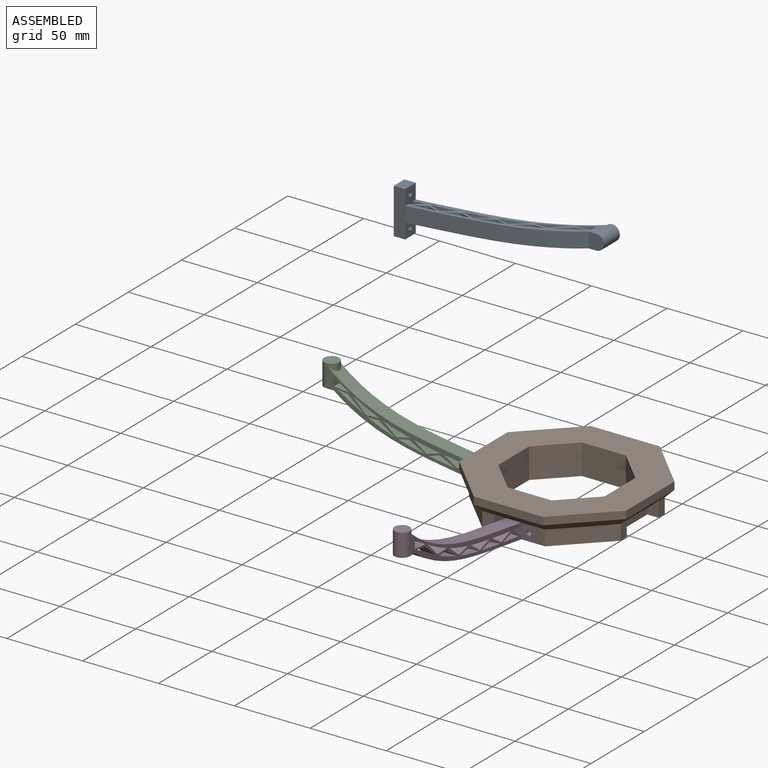
[diagram: assembled view]
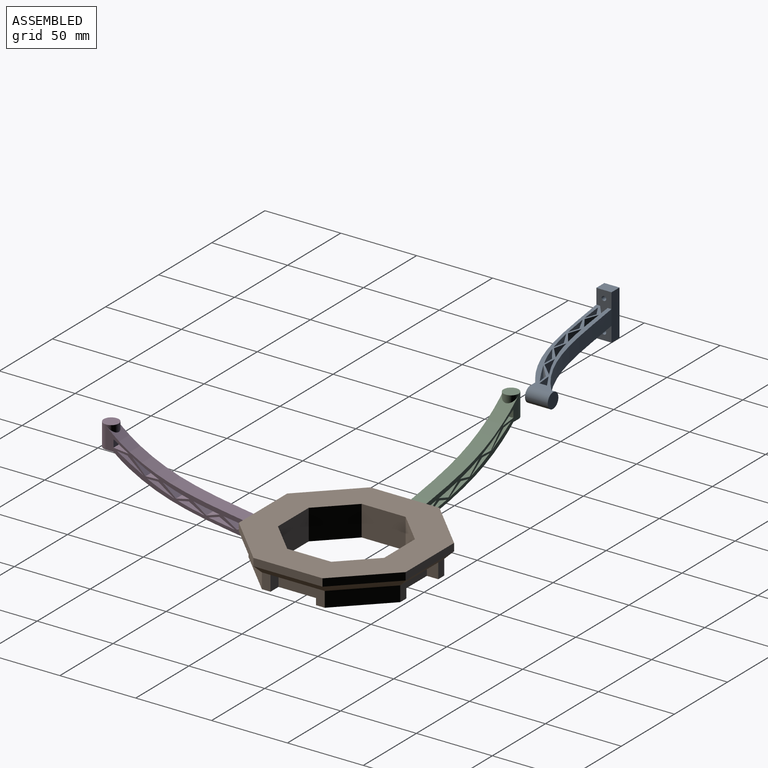
[diagram: assembled view, second angle]
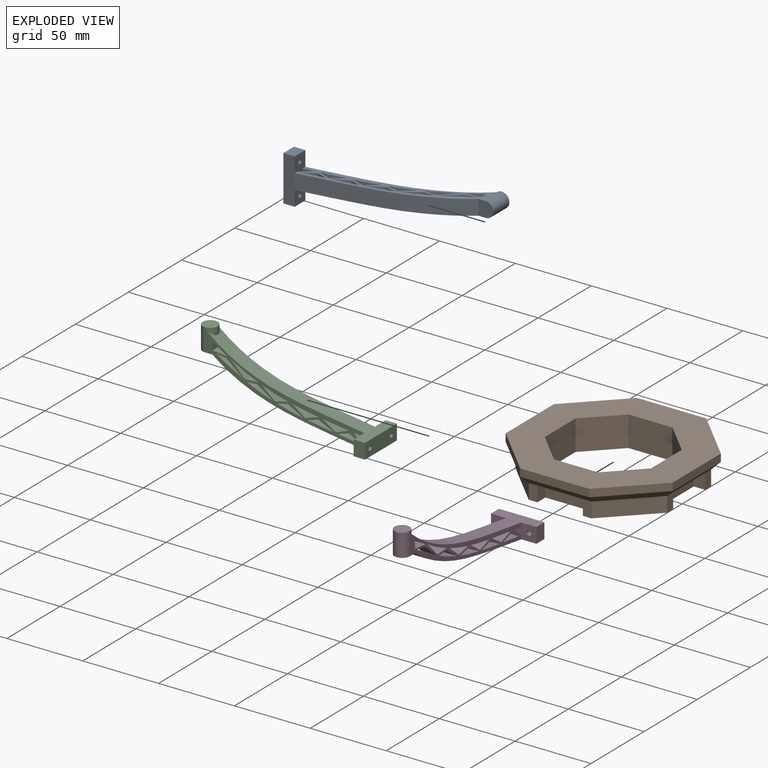
[diagram: exploded view]
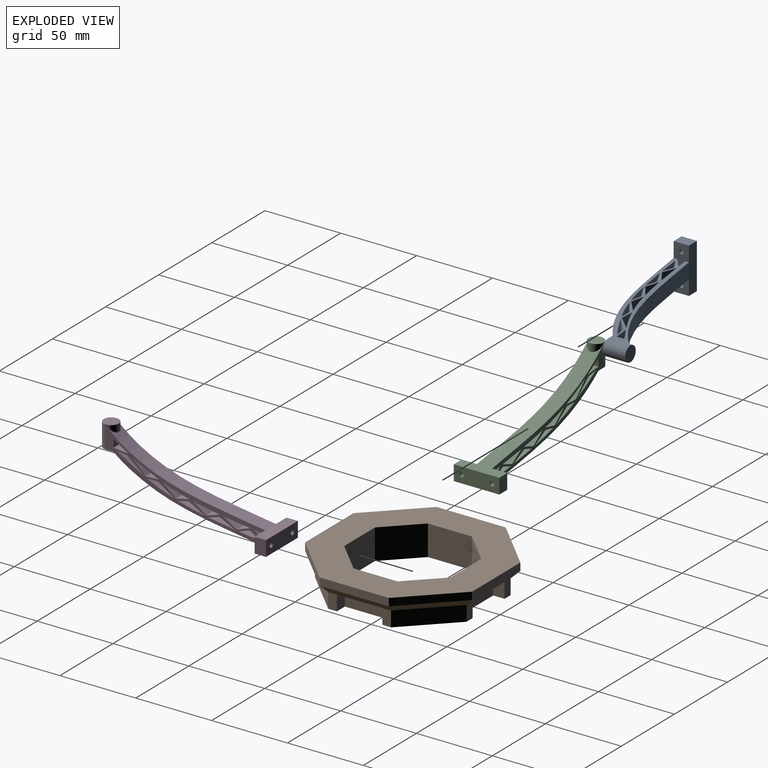
[diagram: exploded view, second angle]
ASSEMBLY  parts=4 mates=2
PART A: 47 faces, bbox 117.5x45x30 mm
  f0: plane 10x7.08mm, normal (0.13,-0.99,0), area 71.5mm2, adj f1,f39,f40,f41
  f1: extruded ~17.86x10.11mm, area 205.3mm2, adj f0,f39,f40,f41
  f2: extruded ~17.76x10mm, area 191.2mm2, adj f3,f28,f40,f41
  f3: plane 10.55x10mm, normal (0.56,-0.83,0), area 127.7mm2, adj f2,f28,f40,f41
  f4: plane 10x7.34mm, normal (-0.33,-0.94,0), area 77.7mm2, adj f5,f29,f40,f41
  f5: extruded ~15.04x10mm, area 151.5mm2, adj f4,f29,f40,f41
  f6: extruded ~17.34x10mm, area 175.5mm2, adj f7,f30,f40,f41
  f7: plane 10.23x10mm, normal (0.44,-0.9,0), area 113.7mm2, adj f6,f30,f40,f41
  f8: extruded ~17.6x10mm, area 180.8mm2, adj f9,f31,f40,f41
  f9: plane 10.34x10mm, normal (0.48,-0.88,0), area 117.8mm2, adj f8,f31,f40,f41
  f10: extruded ~17.83x10mm, area 198.8mm2, adj f11,f32,f40,f41
  f11: plane 10x9.15mm, normal (-0.72,0.7,0), area 127.9mm2, adj f10,f32,f40,f41
  f12: extruded ~17.68x10mm, area 184.8mm2, adj f13,f33,f40,f41
  f13: plane 10x8.88mm, normal (-0.64,0.77,0), area 115.4mm2, adj f12,f33,f40,f41
  f14: extruded ~17.56x10mm, area 178.7mm2, adj f15,f34,f40,f41
  f15: plane 10x8.69mm, normal (-0.58,0.82,0), area 106.6mm2, adj f14,f34,f40,f41
  f16: extruded ~17.53x10mm, area 176.9mm2, adj f17,f35,f40,f41
  f17: plane 10x8.77mm, normal (-0.54,0.84,0), area 104.1mm2, adj f16,f35,f40,f41
  f18: extruded ~10x7.52mm, area 75.7mm2, adj f19,f36,f40,f41
  f19: plane 10x7.52mm, normal (-0.62,0.79,0), area 95.6mm2, adj f18,f36,f40,f41
  f20: extruded ~100x30mm, area 1057.5mm2, adj f21,f37,f40,f41
  f21: plane 10x10mm, normal (0,-1,0), area 89.3mm2, adj f20,f40,f41,f42
  f22: plane 10x10mm, normal (0,1,0), area 78.5mm2, adj f42
  f23: extruded ~105x34.08mm, area 1071.3mm2, adj f24,f40,f41,f42
  f24: plane 30x7.5mm, normal (0,1,0), area 225mm2, adj f23,f25,f36,f43,f45
  f25: plane 30x10mm, normal (-1,0,0), area 285.9mm2, adj f24,f37,f43,f44,f45,f46
  f26: plane 10x5mm, normal (-1,0,0), area 50mm2, adj f27,f38,f40,f41
  f27: plane 10x10mm, normal (-0.1,1,0), area 100.5mm2, adj f26,f38,f40,f41
  f28: plane 10x7.21mm, normal (-0.02,-1,0), area 72.1mm2, adj f2,f3,f40,f41
  f29: plane 10x7.7mm, normal (0.5,-0.87,0), area 88.8mm2, adj f4,f5,f40,f41
  f30: plane 10x7.11mm, normal (-0.31,-0.95,0), area 74.7mm2, adj f6,f7,f40,f41
  f31: plane 10x7.27mm, normal (-0.21,-0.98,0), area 74.3mm2, adj f8,f9,f40,f41
  f32: plane 10x8.89mm, normal (0.04,1,0), area 89mm2, adj f10,f11,f40,f41
  f33: plane 10x8.8mm, normal (0.22,0.97,0), area 90.3mm2, adj f12,f13,f40,f41
  f34: plane 10x8.87mm, normal (0.31,0.95,0), area 93.4mm2, adj f14,f15,f40,f41
  f35: plane 10x8.76mm, normal (0.35,0.94,0), area 93.4mm2, adj f16,f17,f40,f41
  f36: plane 30x10mm, normal (1,0,0), area 235.9mm2, adj f18,f19,f24,f37,f40,f41,f43,f44
  f37: plane 30x7.5mm, normal (0,-1,0), area 225mm2, adj f20,f25,f36,f43,f45
  f38: extruded ~10x10mm, area 116.4mm2, adj f26,f27,f40,f41
  f39: plane 10.78x10mm, normal (0.65,-0.76,0), area 141.4mm2, adj f0,f1,f40,f41
  f40: plane 105.76x44.84mm, normal (0,0,1), area 715.1mm2, adj f0,f1,f2,f3,f4,f5,f6,f7
  f41: plane 105.76x44.84mm, normal (0,0,-1), area 715.1mm2, adj f0,f1,f2,f3,f4,f5,f6,f7
  f42: cylinder r=5mm len=15mm, axis (0,-1,0), area 290.9mm2, adj f21,f22,f23,f40,f41
  f43: plane 10x7.5mm, normal (0,0,1), area 75mm2, adj f24,f25,f36,f37
  f44: cylinder r=1.5mm len=7.5mm, axis (1,0,0), area 70.7mm2, adj f25,f36
  f45: plane 10x7.5mm, normal (0,0,-1), area 75mm2, adj f24,f25,f36,f37
  f46: cylinder r=1.5mm len=7.5mm, axis (1,0,0), area 70.7mm2, adj f25,f36
PART B: 54 faces, bbox 110x110x20 mm
  f0: plane 30x7.5mm, normal (0,0,-1), area 225mm2, adj f20,f21,f22,f52
  f1: plane 30x7.5mm, normal (0,0,-1), area 225mm2, adj f3,f4,f34,f48
  f2: plane 30x7.5mm, normal (0,0,-1), area 225mm2, adj f8,f9,f10,f47
  f3: plane 30x10mm, normal (1,0,0), area 300mm2, adj f1,f4,f34,f35
  f4: plane 10x7.5mm, normal (0,-1,0), area 75mm2, adj f1,f3,f5,f35
  f5: plane 10x5.71mm, normal (1,0,0), area 57.1mm2, adj f4,f6,f35,f48
  f6: plane 29.29x29.29mm, normal (0.71,0.71,0), area 414.2mm2, adj f5,f7,f35,f46
  f7: plane 10x5.71mm, normal (0,1,0), area 57.1mm2, adj f6,f8,f35,f47
  f8: plane 10x7.5mm, normal (-1,0,0), area 75mm2, adj f2,f7,f9,f35
  f9: plane 30x10mm, normal (0,1,0), area 300mm2, adj f2,f8,f10,f35
  f10: plane 10x7.5mm, normal (1,0,0), area 75mm2, adj f2,f9,f11,f35
  f11: plane 10x5.71mm, normal (0,1,0), area 57.1mm2, adj f10,f12,f35,f47
  f12: plane 29.29x29.29mm, normal (-0.71,0.71,0), area 414.2mm2, adj f11,f13,f35,f49
  f13: plane 10x5.71mm, normal (-1,0,0), area 57.1mm2, adj f12,f14,f35,f51
  f14: plane 10x7.5mm, normal (0,-1,0), area 75mm2, adj f13,f15,f35,f45
  f15: plane 30x10mm, normal (-1,0,0), area 300mm2, adj f14,f16,f35,f45
  f16: plane 10x7.5mm, normal (0,1,0), area 75mm2, adj f15,f17,f35,f45
  f17: plane 10x5.71mm, normal (-1,0,0), area 57.1mm2, adj f16,f18,f35,f51
  f18: plane 29.29x29.29mm, normal (-0.71,-0.71,0), area 414.2mm2, adj f17,f19,f35,f53
  f19: plane 10x5.71mm, normal (0,-1,0), area 57.1mm2, adj f18,f20,f35,f52
  f20: plane 10x7.5mm, normal (1,0,0), area 75mm2, adj f0,f19,f21,f35
  f21: plane 30x10mm, normal (0,-1,0), area 300mm2, adj f0,f20,f22,f35
  f22: plane 10x7.5mm, normal (-1,0,0), area 75mm2, adj f0,f21,f23,f35
  f23: plane 10x5.71mm, normal (0,-1,0), area 57.1mm2, adj f22,f24,f35,f52
  f24: plane 29.29x29.29mm, normal (0.71,-0.71,0), area 414.2mm2, adj f23,f25,f35,f50
  f25: plane 10x5.71mm, normal (1,0,0), area 57.1mm2, adj f24,f34,f35,f48
  f26: plane 29x20mm, normal (0,-1,0), area 579.9mm2, adj f27,f33,f35,f44
  f27: plane 20.5x20.5mm, normal (-0.71,-0.71,0), area 579.9mm2, adj f26,f28,f35,f44
  f28: plane 29x20mm, normal (-1,0,0), area 579.9mm2, adj f27,f29,f35,f44
  f29: plane 20.5x20.5mm, normal (-0.71,0.71,0), area 579.9mm2, adj f28,f30,f35,f44
  f30: plane 29x20mm, normal (0,1,0), area 579.9mm2, adj f29,f31,f35,f44
  f31: plane 20.5x20.5mm, normal (0.71,0.71,0), area 579.9mm2, adj f30,f32,f35,f44
  f32: plane 29x20mm, normal (1,0,0), area 579.9mm2, adj f31,f33,f35,f44
  f33: plane 20.5x20.5mm, normal (0.71,-0.71,0), area 579.9mm2, adj f26,f32,f35,f44
  f34: plane 10x7.5mm, normal (0,1,0), area 75mm2, adj f1,f3,f25,f35
  f35: plane 100x100mm, normal (0,0,-1), area 3325mm2, adj f3,f4,f5,f6,f7,f8,f9,f10
  f36: plane 32.22x32.22mm, normal (0.71,0.71,0), area 227.8mm2, adj f37,f43,f44,f46
  f37: plane 45.56x5mm, normal (0,1,0), area 227.8mm2, adj f36,f38,f44,f47
  f38: plane 32.22x32.22mm, normal (-0.71,0.71,0), area 227.8mm2, adj f37,f39,f44,f49
  f39: plane 45.56x5mm, normal (-1,0,0), area 227.8mm2, adj f38,f40,f44,f51
  f40: plane 32.22x32.22mm, normal (-0.71,-0.71,0), area 227.8mm2, adj f39,f41,f44,f53
  f41: plane 45.56x5mm, normal (0,-1,0), area 227.8mm2, adj f40,f42,f44,f52
  f42: plane 32.22x32.22mm, normal (0.71,-0.71,0), area 227.8mm2, adj f41,f43,f44,f50
  f43: plane 45.56x5mm, normal (1,0,0), area 227.8mm2, adj f36,f42,f44,f48
  f44: plane 110x110mm, normal (0,0,1), area 5964.7mm2, adj f26,f27,f28,f29,f30,f31,f32,f33
  f45: plane 30x7.5mm, normal (0,0,-1), area 225mm2, adj f14,f15,f16,f51
  f46: plane 34.29x34.29mm, normal (0.5,0.5,-0.71), area 307.5mm2, adj f6,f36,f47,f48
  f47: plane 45.56x5mm, normal (0,0.71,-0.71), area 307.5mm2, adj f2,f7,f11,f37,f46,f49
  f48: plane 45.56x5mm, normal (0.71,0,-0.71), area 307.5mm2, adj f1,f5,f25,f43,f46,f50
  f49: plane 34.29x34.29mm, normal (-0.5,0.5,-0.71), area 307.5mm2, adj f12,f38,f47,f51
  f50: plane 34.29x34.29mm, normal (0.5,-0.5,-0.71), area 307.5mm2, adj f24,f42,f48,f52
  f51: plane 45.56x5mm, normal (-0.71,0,-0.71), area 307.5mm2, adj f13,f17,f39,f45,f49,f53
  f52: plane 45.56x5mm, normal (0,-0.71,-0.71), area 307.5mm2, adj f0,f19,f23,f41,f50,f53
  f53: plane 34.29x34.29mm, normal (-0.5,-0.5,-0.71), area 307.5mm2, adj f18,f40,f51,f52
PART C: same geometry as A
PART D: same geometry as A
PLACE A t=(-192.28,13.92,105.54)mm
PLACE B t=(-43.39,-46.53,0.28)mm
PLACE C rot(axis=(0,-0.71,-0.71),180deg) t=(-93.39,-51.53,0.28)mm
PLACE D rot(axis=(0.58,-0.58,-0.58),120deg) t=(-38.39,-96.53,0.28)mm
MATE fastened C.f25 <-> B.f15  axis (1,0,0) through (-85.89,-46.53,5.28)mm
MATE fastened D.f25 <-> B.f21  axis (0,1,0) through (-43.39,-89.03,5.28)mm
